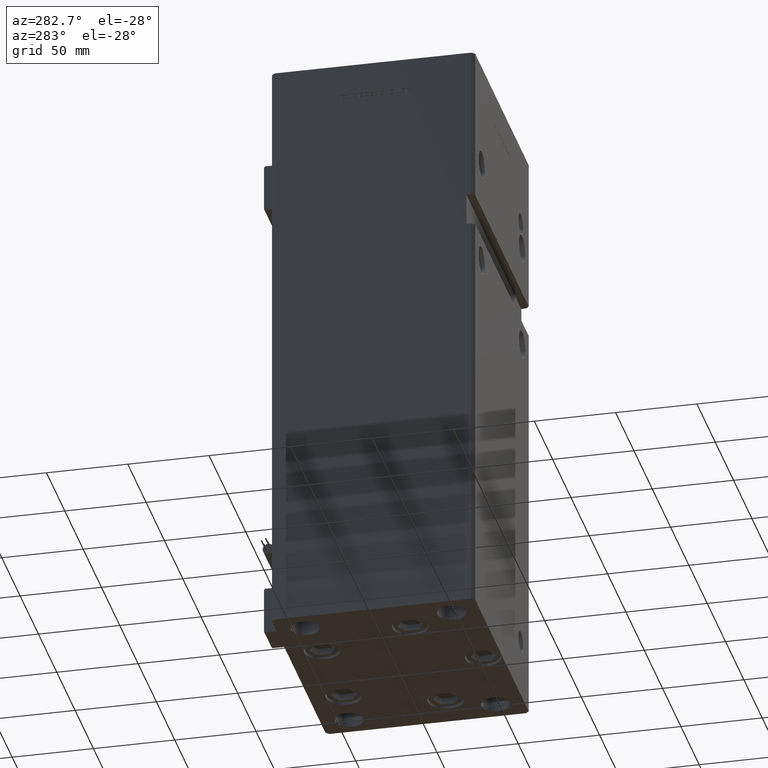
[diagram: clean part render]
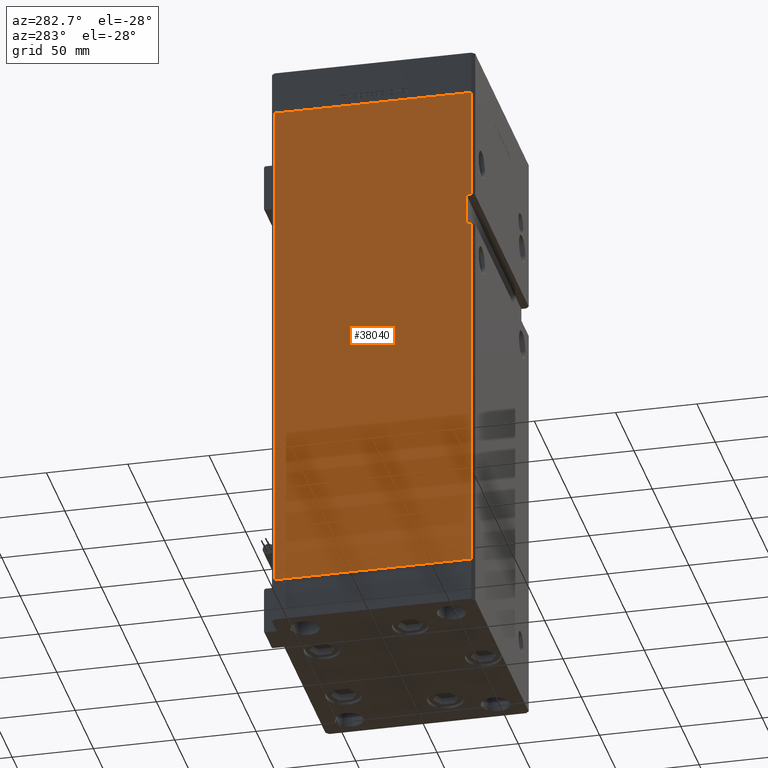
[diagram: same view with one face highlighted and labeled with its STEP entity id]
A machine part, auxiliary view. The second image highlights one B-rep face of the part: STEP entity #38040.
In plain terms, the highlighted planar face has unit normal (1, 0, 0).
Its self-contained STEP definition (entity closure, byte-faithful):
#14 = VERTEX_POINT ( 'NONE', #55671 ) ;
#707 = FACE_OUTER_BOUND ( 'NONE', #52492, .T. ) ;
#1033 = LINE ( 'NONE', #35313, #27252 ) ;
#2077 = CARTESIAN_POINT ( 'NONE',  ( -74.99999999999998579, -60.50000000000000000, 317.0000000000000000 ) ) ;
#2628 = LINE ( 'NONE', #2077, #47651 ) ;
#4087 = ORIENTED_EDGE ( 'NONE', *, *, #41873, .F. ) ;
#6144 = LINE ( 'NONE', #18910, #14249 ) ;
#12103 = VERTEX_POINT ( 'NONE', #36241 ) ;
#12381 = LINE ( 'NONE', #46653, #48984 ) ;
#13344 = LINE ( 'NONE', #24986, #20021 ) ;
#13378 = CARTESIAN_POINT ( 'NONE',  ( -74.99999999999998579, -60.50000000000000000, 0.000000000000000000 ) ) ;
#13415 = VERTEX_POINT ( 'NONE', #49437 ) ;
#14249 = VECTOR ( 'NONE', #40420, 1000.000000000000000 ) ;
#14656 = DIRECTION ( 'NONE',  ( -0.000000000000000000, -0.000000000000000000, -1.000000000000000000 ) ) ;
#15066 = DIRECTION ( 'NONE',  ( -2.293849224432141861E-16, 1.000000000000000000, 0.000000000000000000 ) ) ;
#15748 = DIRECTION ( 'NONE',  ( -0.000000000000000000, -1.000000000000000000, -0.000000000000000000 ) ) ;
#15923 = ORIENTED_EDGE ( 'NONE', *, *, #38668, .T. ) ;
#16111 = VECTOR ( 'NONE', #44992, 1000.000000000000000 ) ;
#16749 = EDGE_CURVE ( 'NONE', #27285, #36319, #37257, .T. ) ;
#17599 = ORIENTED_EDGE ( 'NONE', *, *, #52562, .F. ) ;
#18331 = DIRECTION ( 'NONE',  ( 0.000000000000000000, 0.000000000000000000, -1.000000000000000000 ) ) ;
#18910 = CARTESIAN_POINT ( 'NONE',  ( -75.00000000000001421, 60.50000000000000000, 317.0000000000000000 ) ) ;
#19322 = PLANE ( 'NONE',  #48086 ) ;
#19726 = CARTESIAN_POINT ( 'NONE',  ( -74.99999999999998579, -57.50000000000000000, 248.0000000000000000 ) ) ;
#20021 = VECTOR ( 'NONE', #34039, 1000.000000000000000 ) ;
#20141 = EDGE_CURVE ( 'NONE', #12103, #14, #32793, .T. ) ;
#20441 = ORIENTED_EDGE ( 'NONE', *, *, #16749, .T. ) ;
#21071 = VERTEX_POINT ( 'NONE', #37609 ) ;
#23289 = EDGE_CURVE ( 'NONE', #13415, #34294, #6144, .T. ) ;
#23438 = CARTESIAN_POINT ( 'NONE',  ( -75.00000000000001421, 60.50000000000000000, 317.0000000000000000 ) ) ;
#24264 = VECTOR ( 'NONE', #15748, 1000.000000000000000 ) ;
#24850 = DIRECTION ( 'NONE',  ( -0.000000000000000000, -0.000000000000000000, -1.000000000000000000 ) ) ;
#24986 = CARTESIAN_POINT ( 'NONE',  ( -75.00000000000001421, 60.50000000000000000, 0.000000000000000000 ) ) ;
#27252 = VECTOR ( 'NONE', #18331, 1000.000000000000000 ) ;
#27285 = VERTEX_POINT ( 'NONE', #45534 ) ;
#32793 = LINE ( 'NONE', #41851, #16111 ) ;
#34039 = DIRECTION ( 'NONE',  ( 2.293849224432141861E-16, -1.000000000000000000, 0.000000000000000000 ) ) ;
#34294 = VERTEX_POINT ( 'NONE', #45820 ) ;
#35313 = CARTESIAN_POINT ( 'NONE',  ( -74.99999999999998579, -57.50000000000000000, 248.0000000000000000 ) ) ;
#36112 = VERTEX_POINT ( 'NONE', #13378 ) ;
#36241 = CARTESIAN_POINT ( 'NONE',  ( -74.99999999999998579, -57.50000000000000000, 228.0000000000000000 ) ) ;
#36319 = VERTEX_POINT ( 'NONE', #54426 ) ;
#36363 = DIRECTION ( 'NONE',  ( -0.000000000000000000, -0.000000000000000000, -1.000000000000000000 ) ) ;
#37134 = DIRECTION ( 'NONE',  ( 1.000000000000000000, 2.293849224432141861E-16, -0.000000000000000000 ) ) ;
#37257 = LINE ( 'NONE', #19726, #24264 ) ;
#37609 = CARTESIAN_POINT ( 'NONE',  ( -75.00000000000001421, 60.50000000000000000, 0.000000000000000000 ) ) ;
#38040 = ADVANCED_FACE ( 'NONE', ( #707 ), #19322, .F. ) ;
#38071 = ORIENTED_EDGE ( 'NONE', *, *, #20141, .F. ) ;
#38668 = EDGE_CURVE ( 'NONE', #13415, #21071, #45232, .T. ) ;
#40420 = DIRECTION ( 'NONE',  ( 2.293849224432141861E-16, -1.000000000000000000, 0.000000000000000000 ) ) ;
#41401 = EDGE_CURVE ( 'NONE', #21071, #36112, #13344, .T. ) ;
#41851 = CARTESIAN_POINT ( 'NONE',  ( -74.99999999999998579, -57.50000000000000000, 228.0000000000000000 ) ) ;
#41873 = EDGE_CURVE ( 'NONE', #34294, #36319, #12381, .T. ) ;
#42025 = ORIENTED_EDGE ( 'NONE', *, *, #42053, .F. ) ;
#42053 = EDGE_CURVE ( 'NONE', #27285, #12103, #1033, .T. ) ;
#44992 = DIRECTION ( 'NONE',  ( -0.000000000000000000, -1.000000000000000000, -0.000000000000000000 ) ) ;
#45232 = LINE ( 'NONE', #23438, #45370 ) ;
#45370 = VECTOR ( 'NONE', #14656, 1000.000000000000000 ) ;
#45534 = CARTESIAN_POINT ( 'NONE',  ( -74.99999999999998579, -57.50000000000000000, 248.0000000000000000 ) ) ;
#45820 = CARTESIAN_POINT ( 'NONE',  ( -74.99999999999998579, -60.50000000000000000, 317.0000000000000000 ) ) ;
#46653 = CARTESIAN_POINT ( 'NONE',  ( -74.99999999999998579, -60.50000000000000000, 317.0000000000000000 ) ) ;
#47651 = VECTOR ( 'NONE', #36363, 1000.000000000000000 ) ;
#48086 = AXIS2_PLACEMENT_3D ( 'NONE', #49899, #37134, #15066 ) ;
#48984 = VECTOR ( 'NONE', #24850, 1000.000000000000000 ) ;
#49437 = CARTESIAN_POINT ( 'NONE',  ( -75.00000000000001421, 60.50000000000000000, 317.0000000000000000 ) ) ;
#49899 = CARTESIAN_POINT ( 'NONE',  ( -75.00000000000001421, 60.50000000000000000, 317.0000000000000000 ) ) ;
#52107 = ORIENTED_EDGE ( 'NONE', *, *, #41401, .T. ) ;
#52492 = EDGE_LOOP ( 'NONE', ( #17599, #38071, #42025, #20441, #4087, #54244, #15923, #52107 ) ) ;
#52562 = EDGE_CURVE ( 'NONE', #14, #36112, #2628, .T. ) ;
#54244 = ORIENTED_EDGE ( 'NONE', *, *, #23289, .F. ) ;
#54426 = CARTESIAN_POINT ( 'NONE',  ( -74.99999999999998579, -60.50000000000000000, 248.0000000000000000 ) ) ;
#55671 = CARTESIAN_POINT ( 'NONE',  ( -74.99999999999998579, -60.50000000000000000, 228.0000000000000000 ) ) ;